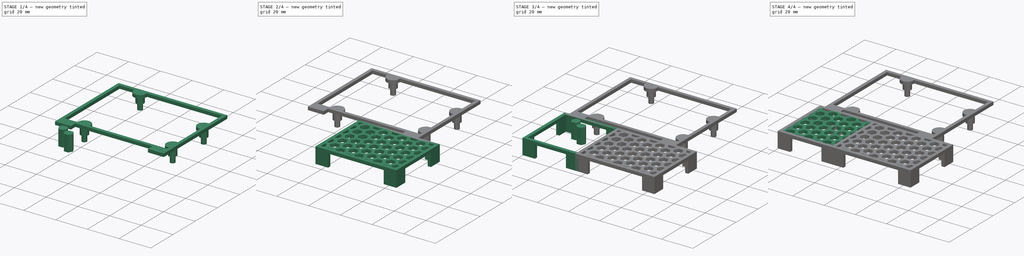
[diagram: build sequence overview — one tinted view per stage of 4, left to right]
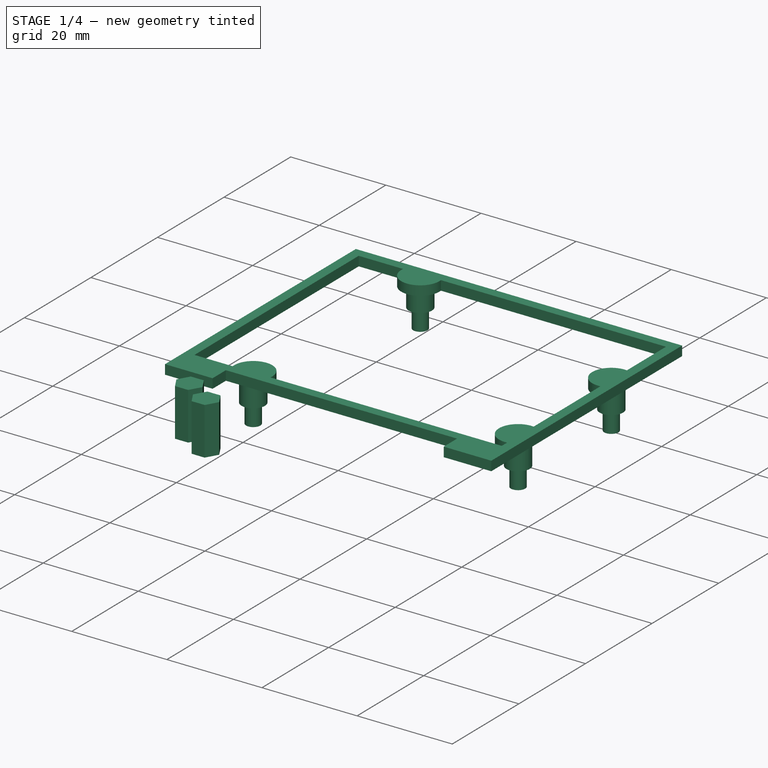
[diagram: stage 1 of 4 — iso view after this stage's code; geometry added in this stage tinted green]
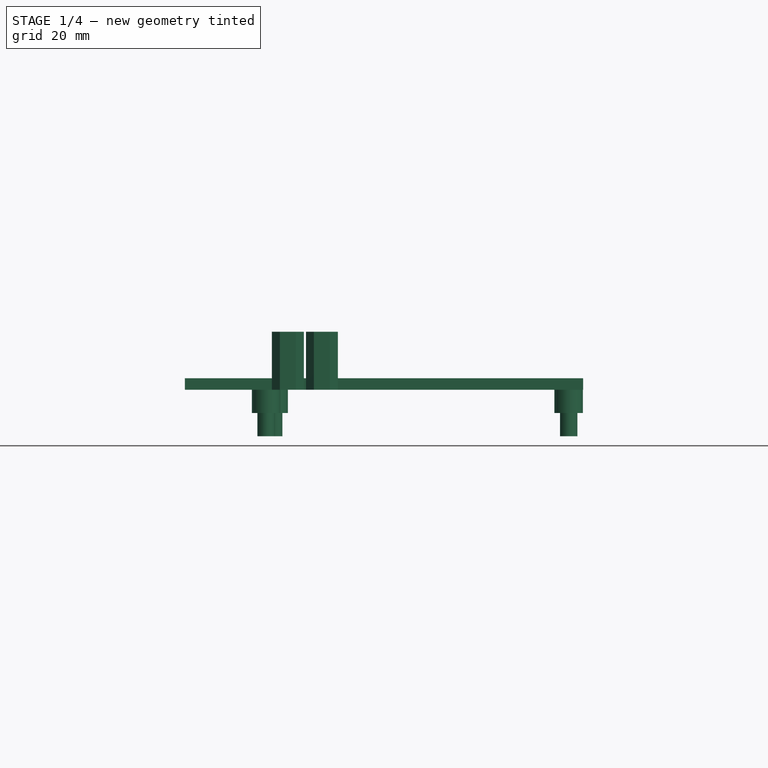
[diagram: stage 1 of 4 — front view after this stage's code; geometry added in this stage tinted green]
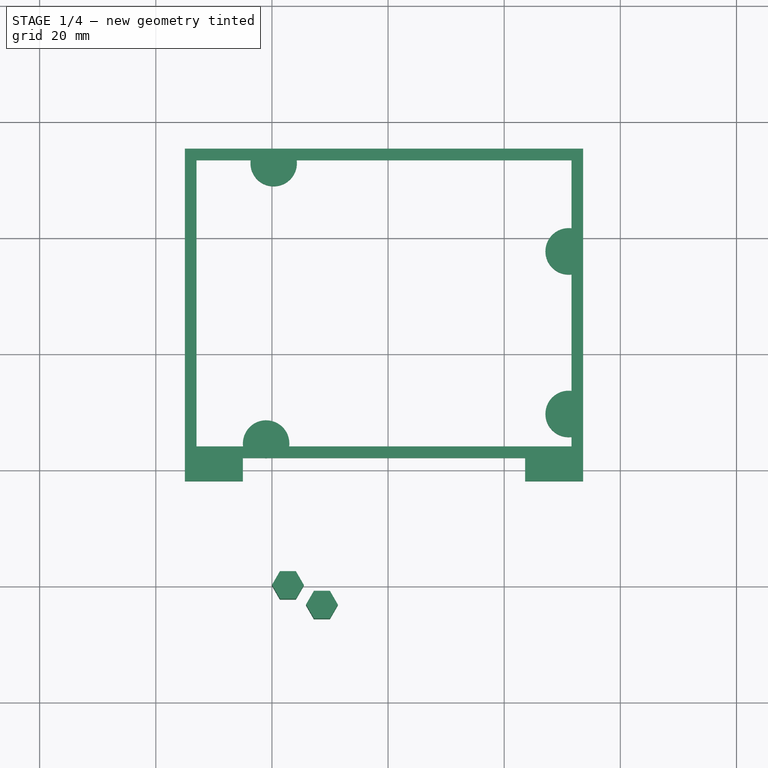
[diagram: stage 1 of 4 — top view after this stage's code; geometry added in this stage tinted green]
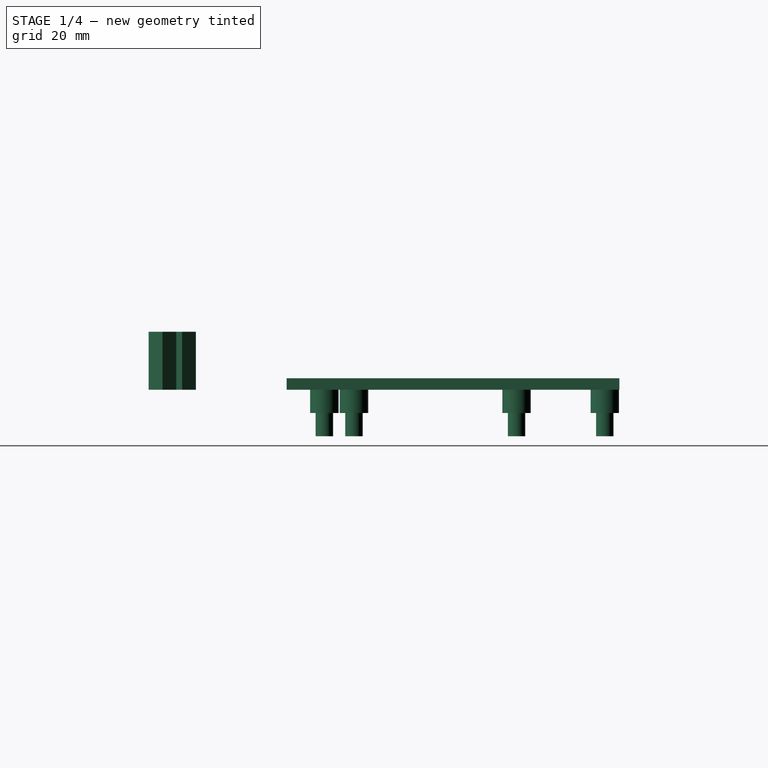
[diagram: stage 1 of 4 — right view after this stage's code; geometry added in this stage tinted green]
FCSTD DOCUMENT  (FreeCAD 0.18R16146 (Git))
Label: totalMpptBoard
License: All rights reserved
LicenseURL: http://en.wikipedia.org/wiki/All_rights_reserved
objects: Sketcher::SketchObject×11, PartDesign::Pad×6, App::FeaturePython×4, PartDesign::Body×3, Spreadsheet::Sheet×2, Part::Extrusion×2, Part::FeaturePython×2, Part::Cut×2, Part::MultiFuse×2
note: 34 computed .brp shape members not serialized (recipe doc carries the construction recipe); baked Part::Feature solids carry a one-line shape summary decoded from their .brp

FEATURE [Sketcher::SketchObject] Sketch008  label="hexagons002"
  MapMode = 5
  Support = -> [XY_Plane002]
  expr: Constraints[41] = Spreadsheet001.hex_gap
  expr: Constraints[37] = Spreadsheet001.hex_diam / 2
  sketch-geometry (15):
    g0: LineSegment StartX=5.5 StartY=4e-16 StartZ=0 EndX=4.125 EndY=2.38157 EndZ=0
    g1: LineSegment StartX=4.125 StartY=2.38157 StartZ=0 EndX=1.375 EndY=2.38157 EndZ=0
    g2: LineSegment StartX=1.375 StartY=2.38157 StartZ=0 EndX=0 EndY=0 EndZ=0
    g3: LineSegment StartX=0 StartY=0 StartZ=0 EndX=1.375 EndY=-2.38157 EndZ=0
    g4: LineSegment StartX=1.375 StartY=-2.38157 StartZ=0 EndX=4.125 EndY=-2.38157 EndZ=0
    g5: LineSegment StartX=4.125 StartY=-2.38157 StartZ=0 EndX=5.5 EndY=4e-16 EndZ=0
    g6: Circle [constr] CenterX=2.75 CenterY=1e-16 CenterZ=0 NormalX=0 NormalY=0 NormalZ=1 AngleXU=0 Radius=2.75
    g7: LineSegment StartX=11.3571 StartY=-3.38157 StartZ=0 EndX=9.98205 EndY=-1 EndZ=0
    g8: LineSegment StartX=9.98205 StartY=-1 StartZ=0 EndX=7.23205 EndY=-1 EndZ=0
    g9: LineSegment StartX=7.23205 StartY=-1 StartZ=0 EndX=5.85705 EndY=-3.38157 EndZ=0
    g10: LineSegment StartX=5.85705 StartY=-3.38157 StartZ=0 EndX=7.23205 EndY=-5.76314 EndZ=0
    g11: LineSegment StartX=7.23205 StartY=-5.76314 StartZ=0 EndX=9.98205 EndY=-5.76314 EndZ=0
    g12: LineSegment StartX=9.98205 StartY=-5.76314 StartZ=0 EndX=11.3571 EndY=-3.38157 EndZ=0
    g13: Circle [constr] CenterX=8.60705 CenterY=-3.38157 CenterZ=0 NormalX=0 NormalY=0 NormalZ=1 AngleXU=0 Radius=2.75
    g14: LineSegment [constr] StartX=4.125 StartY=-2.38157 StartZ=0 EndX=5.85705 EndY=-3.38157 EndZ=0
  constraints (35):
    c: Coincident(g0,g1)
    c: Coincident(g1,g2)
    c: Coincident(g2,g3)
    c: Coincident(g3,g4)
    c: Coincident(g4,g5)
    c: Coincident(g5,g0)
    c: Equal(g0, g1-g5) x5
    c: PointOnObject(g0,g6)
    c: PointOnObject(g1,g6)
    c: PointOnObject(g2,g6)
    c: PointOnObject(g3,g6)
    c: PointOnObject(g4,g6)
    c: PointOnObject(g5,g6)
    c: Coincident(g7,g8)
    c: Coincident(g8,g9)
    c: Coincident(g9,g10)
    c: Coincident(g10,g11)
    c: Coincident(g11,g12)
    c: Coincident(g12,g7)
    c: Equal(g7, g8-g12) x5
    c: PointOnObject(g7,g13)
    c: PointOnObject(g8,g13)
    c: PointOnObject(g9,g13)
    c: PointOnObject(g10,g13)
    c: PointOnObject(g11,g13)
    c: PointOnObject(g12,g13)
    c: Horizontal(g4)
    c: Horizontal(g11)
    c: Equal(g4,g11)
    c: Radius(g6) = 2.75
    c: Coincident(g14,g4)
    c: Coincident(g14,g9)
    c: Perpendicular(g5,g14)
    c: Distance(g14) = 2
    c: Coincident(g2,g-1)
FEATURE [Sketcher::SketchObject] Sketch009  label="measurements001"
  ExternalGeometry = -> [Sketch008]
  MapMode = 5
  Support = -> [XY_Plane002]
  sketch-geometry (2):
    g0: LineSegment StartX=4.125 StartY=2.38157 StartZ=0 EndX=9.98205 EndY=2.38157 EndZ=0
    g1: LineSegment StartX=9.98205 StartY=-1 StartZ=0 EndX=9.98205 EndY=2.38157 EndZ=0
  constraints (5):
    c: Coincident(g0,g-3)
    c: Coincident(g1,g-4)
    c: Coincident(g1,g0)
    c: Horizontal(g0)
    c: Vertical(g1)
FEATURE [App::FeaturePython] Dimension002  label="height001"  # Draft dimension (typed FeaturePython)
  Diameter = false
  Dimline = (16.0134,2.83449,0)
  Direction = (0,0,0)
  Distance = 3.38157
  End = (9.98205,2.38157,0)
  LinkedGeometry = -> [Sketch009]
  Normal = (0,0,1)
  Start = (9.98205,-1,0)
  Support = -> Sketch009
FEATURE [App::FeaturePython] Dimension003  label="width001"  # Draft dimension (typed FeaturePython)
  Diameter = false
  Dimline = (10.7904,6.27637,0)
  Direction = (0,0,0)
  Distance = 5.85705
  End = (9.98205,2.38157,0)
  LinkedGeometry = -> [Sketch009]
  Normal = (0,0,1)
  Start = (4.125,2.38157,0)
  Support = -> Sketch009
FEATURE [Part::Extrusion] Extrude001  label="3d hexagons001"
  Base = -> Sketch008
  Dir = (0,0,1)
  DirMode = 2
  FaceMakerClass = Part::FaceMakerBullseye
  LengthFwd = 10
  LengthRev = 0
  Solid = true
  Symmetric = false
FEATURE [Spreadsheet::Sheet] Spreadsheet001  label="bb"
  cells = A1=bpWidth; B1(bpWidth)=47; A2=bpLength; B2(bpLength)=35; A3=bpThickness; B3(bpThickness)=2; A4=wallLength; B4(wallLength)=8; A5=wallThickness; B5(wallThickness)=2; A6=wallHeight; B6(wallHeight)=8; A8=hex_diam; B8(hex_diam)=5.5; A9=hex_gap; B9(hex_gap)=2
FEATURE [Sketcher::SketchObject] Sketch011  label="uno2D"
  MapMode = 5
  Support = -> [XY_Plane003]
  sketch-geometry (12):
    g0: LineSegment StartX=-15 StartY=22 StartZ=0 EndX=-15 EndY=75.3 EndZ=0
    g1: LineSegment StartX=-15 StartY=75.3 StartZ=0 EndX=49.3574 EndY=75.3 EndZ=0
    g2: LineSegment StartX=49.3574 StartY=75.3 StartZ=0 EndX=51.4787 EndY=73.1787 EndZ=0
    g3: LineSegment StartX=51.4787 StartY=73.1787 StartZ=0 EndX=51.4787 EndY=61.1213 EndZ=0
    g4: LineSegment StartX=51.4787 StartY=61.1213 StartZ=0 EndX=53.6 EndY=59 EndZ=0
    g5: LineSegment StartX=53.6 StartY=59 StartZ=0 EndX=53.6 EndY=24.1213 EndZ=0
    g6: LineSegment StartX=53.6 StartY=24.1213 StartZ=0 EndX=51.4787 EndY=22 EndZ=0
    g7: LineSegment StartX=51.4787 StartY=22 StartZ=0 EndX=-15 EndY=22 EndZ=0
    g8: Circle CenterX=0.3 CenterY=72.8 CenterZ=0 NormalX=0 NormalY=0 NormalZ=1 AngleXU=0 Radius=1.3
    g9: Circle CenterX=-1 CenterY=24.5 CenterZ=0 NormalX=0 NormalY=0 NormalZ=1 AngleXU=0 Radius=1.3
    g10: Circle CenterX=51.1 CenterY=57.6 CenterZ=0 NormalX=0 NormalY=0 NormalZ=1 AngleXU=0 Radius=1.3
    g11: Circle CenterX=51.1 CenterY=29.6 CenterZ=0 NormalX=0 NormalY=0 NormalZ=1 AngleXU=0 Radius=1.3
  constraints (36):
    c: Vertical(g0)
    c: Coincident(g0,g1)
    c: Horizontal(g1)
    c: Coincident(g1,g2)
    c: Coincident(g2,g3)
    c: Vertical(g3)
    c: Coincident(g3,g4)
    c: Coincident(g4,g5)
    c: Vertical(g5)
    c: Coincident(g5,g6)
    c: Coincident(g6,g7)
    c: Coincident(g7,g0)
    c: Horizontal(g7)
    c: Angle(g2) = -0.785398
    c: Angle(g4) = -0.785398
    c: Angle(g6) = -2.35619
    c: DistanceX(g6,g3) = 0
    c: Distance(g2) = 3
    c: Distance(g4) = 3
    c: DistanceX(g0,g5) = 68.6
    c: DistanceY(g0,g0) = 53.3
    c: Radius(g8) = 1.3
    c: Equal(g8,g9)
    c: Equal(g8,g10)
    c: Equal(g8,g11)
    c: DistanceY(g0,g9) = 2.5
    c: DistanceX(g9,g8) = 1.3
    c: DistanceY(g8,g0) = 2.5
    c: DistanceX(g0,g8) = 15.3
    c: DistanceX(g8,g10) = 50.8
    c: DistanceX(g11,g10) = 0
    c: DistanceY(g6,g11) = 7.6
    c: DistanceY(g11,g10) = 28
    c: DistanceY(g6,g4) = 37
    c: DistanceX(g0,g-1) = 15
    c: DistanceY(g-1,g0) = 22
FEATURE [Sketcher::SketchObject] Sketch012
  ExternalGeometry = -> [Sketch011]
  expr: Constraints[62] = sd.wallThickness
  expr: Constraints[15] = sd.wallThickness
  expr: Constraints[59] = sd.wallThickness
  expr: Constraints[17] = sd.wallThickness
  expr: Constraints[18] = sd.wallThickness
  expr: Constraints[16] = sd.wallThickness
  sketch-geometry (22):
    g0: LineSegment StartX=-15 StartY=75.3 StartZ=0 EndX=53.6 EndY=75.3 EndZ=0
    g1: LineSegment StartX=53.6 StartY=75.3 StartZ=0 EndX=53.6 EndY=24.1213 EndZ=0
    g2: LineSegment StartX=43.6 StartY=22 StartZ=0 EndX=-5 EndY=22 EndZ=0
    g3: LineSegment StartX=-15 StartY=22 StartZ=0 EndX=-15 EndY=75.3 EndZ=0
    g4: LineSegment StartX=-13 StartY=73.3 StartZ=0 EndX=-3.66863 EndY=73.3 EndZ=0
    g5: LineSegment StartX=51.6 StartY=73.3 StartZ=0 EndX=51.6 EndY=61.5686 EndZ=0
    g6: LineSegment StartX=51.6 StartY=24 StartZ=0 EndX=2.96863 EndY=24 EndZ=0
    g7: LineSegment StartX=-13 StartY=24 StartZ=0 EndX=-13 EndY=73.3 EndZ=0
    g8: ArcOfCircle CenterX=0.3 CenterY=72.8 CenterZ=0 NormalX=0 NormalY=0 NormalZ=1 AngleXU=0 Radius=4 StartAngle=3.01626 EndAngle=6.40851
    g9: ArcOfCircle CenterX=51.1 CenterY=57.6 CenterZ=0 NormalX=0 NormalY=0 NormalZ=1 AngleXU=0 Radius=4 StartAngle=1.44547 EndAngle=4.83772
    g10: ArcOfCircle CenterX=-1 CenterY=24.5 CenterZ=0 NormalX=0 NormalY=0 NormalZ=1 AngleXU=0 Radius=4 StartAngle=6.15786 EndAngle=9.55011
    g11: ArcOfCircle CenterX=51.1 CenterY=29.6 CenterZ=0 NormalX=0 NormalY=0 NormalZ=1 AngleXU=0 Radius=4 StartAngle=1.44547 EndAngle=4.83772
    g12: LineSegment StartX=4.26863 StartY=73.3 StartZ=0 EndX=51.6 EndY=73.3 EndZ=0
    g13: LineSegment StartX=51.6 StartY=53.6314 StartZ=0 EndX=51.6 EndY=33.5686 EndZ=0
    g14: LineSegment StartX=51.6 StartY=25.6314 StartZ=0 EndX=51.6 EndY=24 EndZ=0
    g15: LineSegment StartX=-4.96863 StartY=24 StartZ=0 EndX=-13 EndY=24 EndZ=0
    g16: LineSegment StartX=-5 StartY=22 StartZ=0 EndX=-5 EndY=18 EndZ=0
    g17: LineSegment StartX=-5 StartY=18 StartZ=0 EndX=-15 EndY=18 EndZ=0
    g18: LineSegment StartX=-15 StartY=18 StartZ=0 EndX=-15 EndY=22 EndZ=0
    g19: LineSegment StartX=53.6 StartY=24.1213 StartZ=0 EndX=53.6 EndY=18 EndZ=0
    g20: LineSegment StartX=53.6 StartY=18 StartZ=0 EndX=43.6 EndY=18 EndZ=0
    g21: LineSegment StartX=43.6 StartY=18 StartZ=0 EndX=43.6 EndY=22 EndZ=0
  constraints (68):
    c: Coincident(g0,g1)
    c: Coincident(g3,g0)
    c: Horizontal(g0)
    c: Horizontal(g2)
    c: Vertical(g1)
    c: Coincident(g0,g-3)
    c: Coincident(g3,g-3)
    c: Coincident(g12,g5)
    c: Coincident(g14,g6)
    c: Coincident(g15,g7)
    c: Coincident(g7,g4)
    c: Horizontal(g4)
    c: Horizontal(g6)
    c: Vertical(g5)
    c: Vertical(g7)
    c: DistanceX(g0,g4) = 2
    c: DistanceX(g14,g-4) = 2
    c: DistanceY(g-3,g15) = 2
    c: DistanceY(g4,g0) = 2
    c: DistanceY(g8,g8) = 0
    c: Radius(g8) = 4
    c: Coincident(g9,g-6)
    c: DistanceX(g9,g9) = 0
    c: Radius(g9) = 4
    c: Coincident(g10,g-7)
    c: Coincident(g11,g-8)
    c: Radius(g10) = 4
    c: Radius(g11) = 4
    c: DistanceY(g10,g10) = 0
    c: Coincident(g8,g-5)
    c: DistanceY(g4,g8) = 0
    c: DistanceX(g12,g9) = 0
    c: DistanceX(g14,g11) = 0
    c: DistanceX(g11,g11) = 0
    c: DistanceY(g10,g15) = 0
    c: PointOnObject(g4,g8)
    c: PointOnObject(g12,g8)
    c: Tangent(g4,g12)
    c: PointOnObject(g5,g9)
    c: PointOnObject(g13,g9)
    c: Tangent(g5,g13)
    c: PointOnObject(g13,g11)
    c: PointOnObject(g14,g11)
    c: Tangent(g13,g14)
    c: PointOnObject(g6,g10)
    c: PointOnObject(g15,g10)
    c: Tangent(g6,g15)
    c: Coincident(g16,g17)
    c: Coincident(g17,g18)
    c: Horizontal(g17)
    c: Vertical(g16)
    c: Vertical(g18)
    c: Coincident(g2,g16)
    c: DistanceX(g18,g2) = 10
    c: Coincident(g19,g20)
    c: Coincident(g20,g21)
    c: Horizontal(g20)
    c: Vertical(g19)
    c: Vertical(g21)
    c: DistanceY(g21,g6) = 2
    c: DistanceX(g2,g1) = 10
    c: Coincident(g18,g3)
    c: DistanceY(g2,g10) = 2
    c: DistanceX(g2,g21) = 0
    c: Coincident(g1,g19)
    c: DistanceY(g20,g16) = 0
    c: Coincident(g1,g-4)
    c: DistanceY(g17,g3) = 4
FEATURE [PartDesign::Pad] Pad003  label="unoBorder"
  Length = 2
  Length2 = 100
  Profile = -> Sketch012
  Type = 0
  expr: Length = sd.bpThickness
FEATURE [Sketcher::SketchObject] Sketch014
  ExternalGeometry = -> [Sketch011]
  MapMode = 5
  Support = -> [XY_Plane003]
  sketch-geometry (4):
    g0: Circle CenterX=0.3 CenterY=72.8 CenterZ=0 NormalX=0 NormalY=0 NormalZ=1 AngleXU=0 Radius=1.5
    g1: Circle CenterX=51.1 CenterY=57.6 CenterZ=0 NormalX=0 NormalY=0 NormalZ=1 AngleXU=0 Radius=1.5
    g2: Circle CenterX=51.1 CenterY=29.6 CenterZ=0 NormalX=0 NormalY=0 NormalZ=1 AngleXU=0 Radius=1.5
    g3: Circle CenterX=-1 CenterY=24.5 CenterZ=0 NormalX=0 NormalY=0 NormalZ=1 AngleXU=0 Radius=1.5
  constraints (8):
    c: Coincident(g0,g-3)
    c: Coincident(g1,g-4)
    c: Coincident(g2,g-5)
    c: Coincident(g3,g-6)
    c: Radius(g0) = 1.5
    c: Equal(g0,g1)
    c: Equal(g0,g2)
    c: Equal(g0,g3)
FEATURE [PartDesign::Pad] Pad005  label="thinPoles"
  BaseFeature = -> Pad003
  Length = 8
  Length2 = 100
  Profile = -> Sketch014
  Reversed = true
  Type = 0
FEATURE [Sketcher::SketchObject] Sketch015
  ExternalGeometry = -> [Sketch011]
  MapMode = 5
  Support = -> [XY_Plane003]
  sketch-geometry (4):
    g0: Circle CenterX=0.3 CenterY=72.8 CenterZ=0 NormalX=0 NormalY=0 NormalZ=1 AngleXU=0 Radius=2.45
    g1: Circle CenterX=51.1 CenterY=57.6 CenterZ=0 NormalX=0 NormalY=0 NormalZ=1 AngleXU=0 Radius=2.45
    g2: Circle CenterX=51.1 CenterY=29.6 CenterZ=0 NormalX=0 NormalY=0 NormalZ=1 AngleXU=0 Radius=2.45
    g3: Circle CenterX=-1 CenterY=24.5 CenterZ=0 NormalX=0 NormalY=0 NormalZ=1 AngleXU=0 Radius=2.45
  constraints (8):
    c: Coincident(g0,g-3)
    c: Coincident(g3,g-4)
    c: Coincident(g2,g-5)
    c: Coincident(g1,g-6)
    c: Radius(g0) = 2.45
    c: Equal(g0,g1)
    c: Equal(g0,g2)
    c: Equal(g0,g3)
FEATURE [PartDesign::Pad] Pad006  label="thickPoles"
  BaseFeature = -> Pad005
  Length = 4
  Length2 = 100
  Profile = -> Sketch015
  Reversed = true
  Type = 0
FEATURE [PartDesign::Body] Body002  label="uno"
  Group = -> [Sketch011,Pad003,Sketch014,Pad005,Sketch015,Pad006]
  Origin = -> Origin002
  Tip = -> Pad006
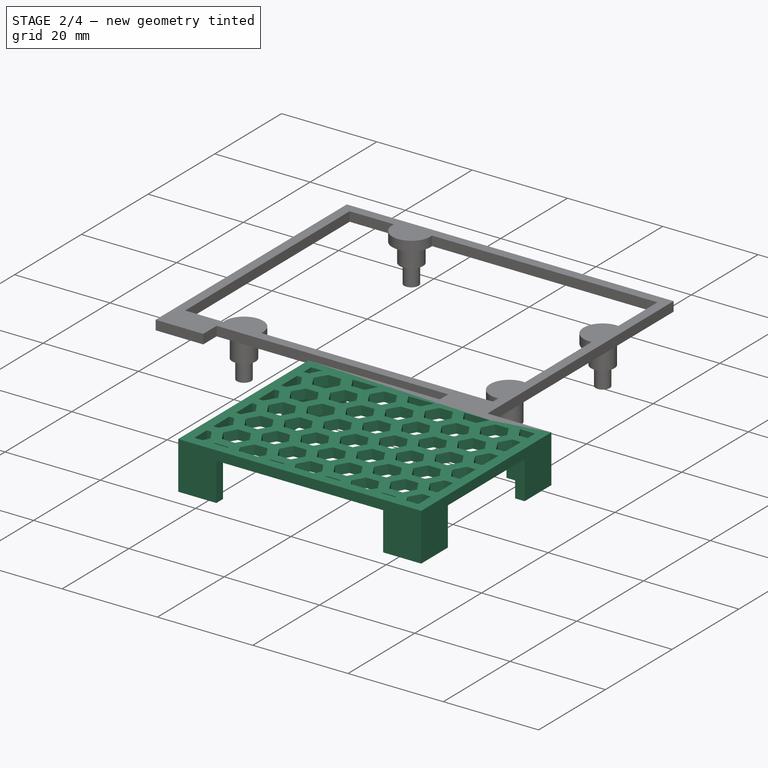
[diagram: stage 2 of 4 — iso view after this stage's code; geometry added in this stage tinted green]
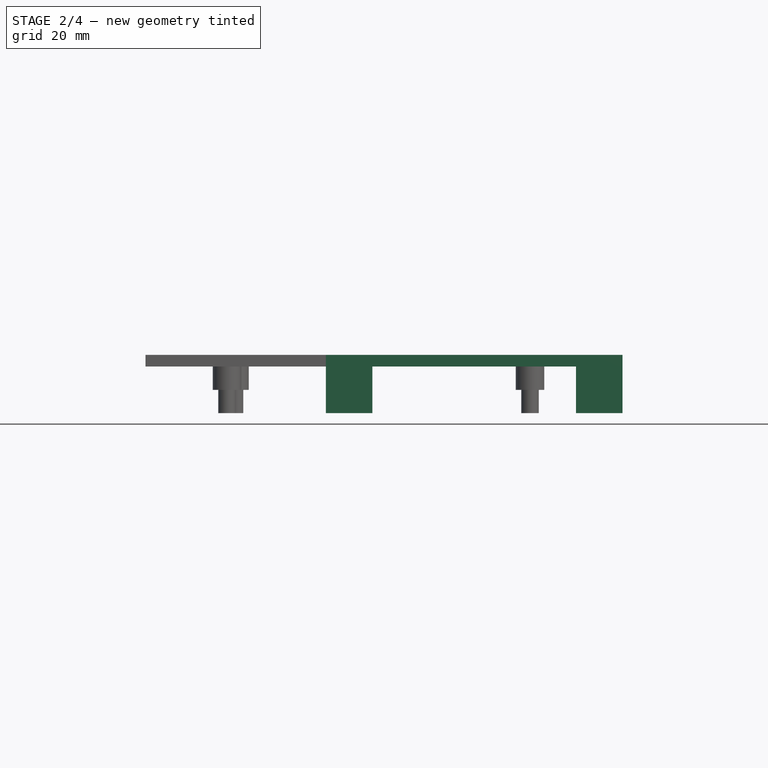
[diagram: stage 2 of 4 — front view after this stage's code; geometry added in this stage tinted green]
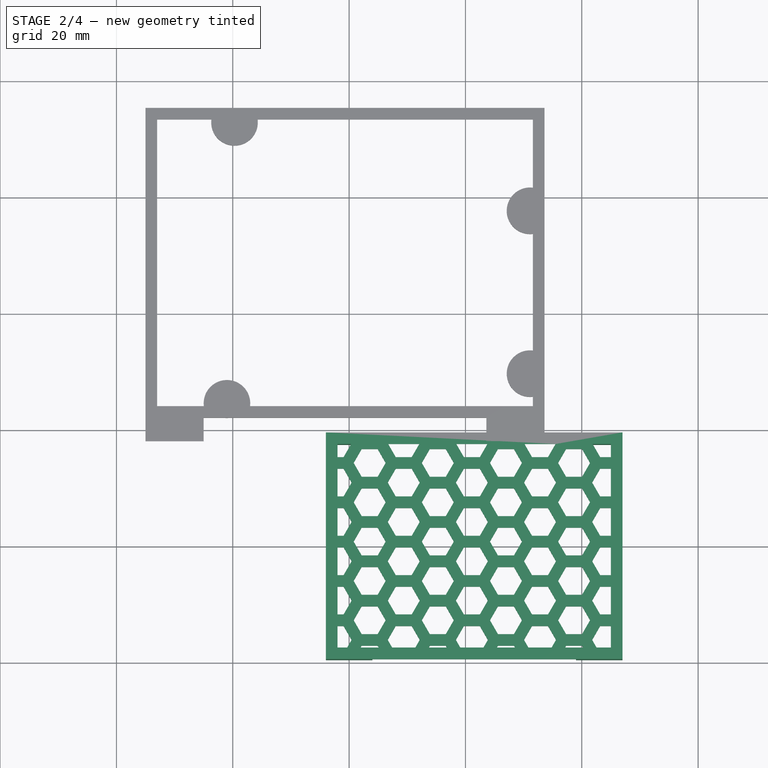
[diagram: stage 2 of 4 — top view after this stage's code; geometry added in this stage tinted green]
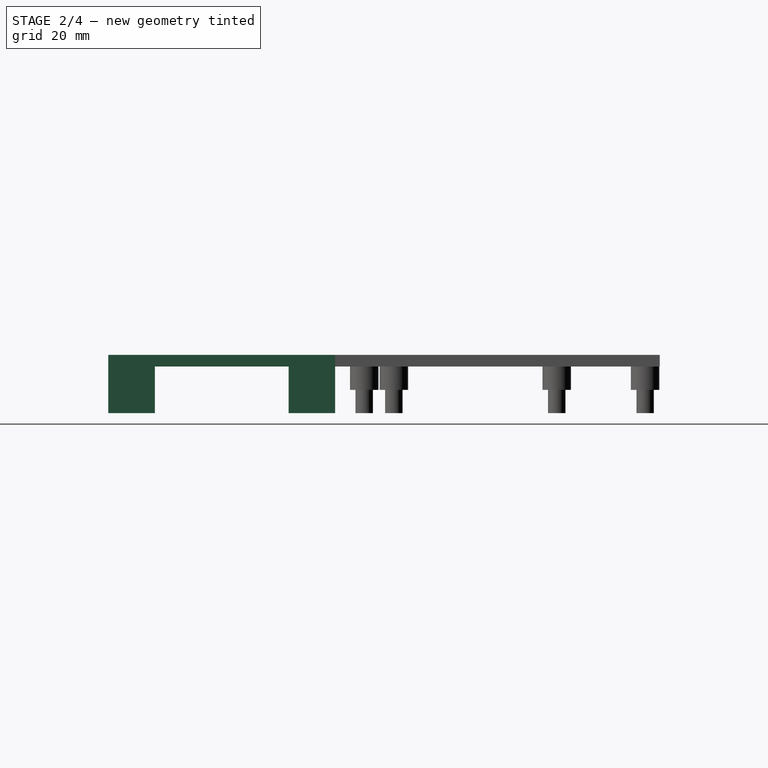
[diagram: stage 2 of 4 — right view after this stage's code; geometry added in this stage tinted green]
FEATURE [Part::FeaturePython] Array001  # Draft array (typed FeaturePython)
  Angle = 360
  ArrayType = 0
  Axis = (0,0,1)
  Base = -> Extrude001
  Center = (0,0,0)
  Fuse = false
  IntervalAxis = (0,0,0)
  IntervalX = (11.7141,0,0)
  IntervalY = (0,6.76314,0)
  IntervalZ = (0,0,1)
  NumberPolar = 1
  NumberX = 10
  NumberY = 20
  NumberZ = 1
  Placement = pos=(-50,-50,-1) rot=(0,0,1;0rad)
  expr: IntervalY.y = height.Distance * 2
  expr: IntervalX.x = width.Distance * 2
FEATURE [Part::Cut] Cut001
  Tool = -> Array001
FEATURE [Part::MultiFuse] Fusion001  label="breadboard"
  Placement = pos=(41.5,0,0) rot=(0,0,1;0rad)
  Shapes = -> [Cut001]
  expr: Placement.Base.x = (bb.bpWidth + sd.bpWidth) / 2 + bb.wallThickness
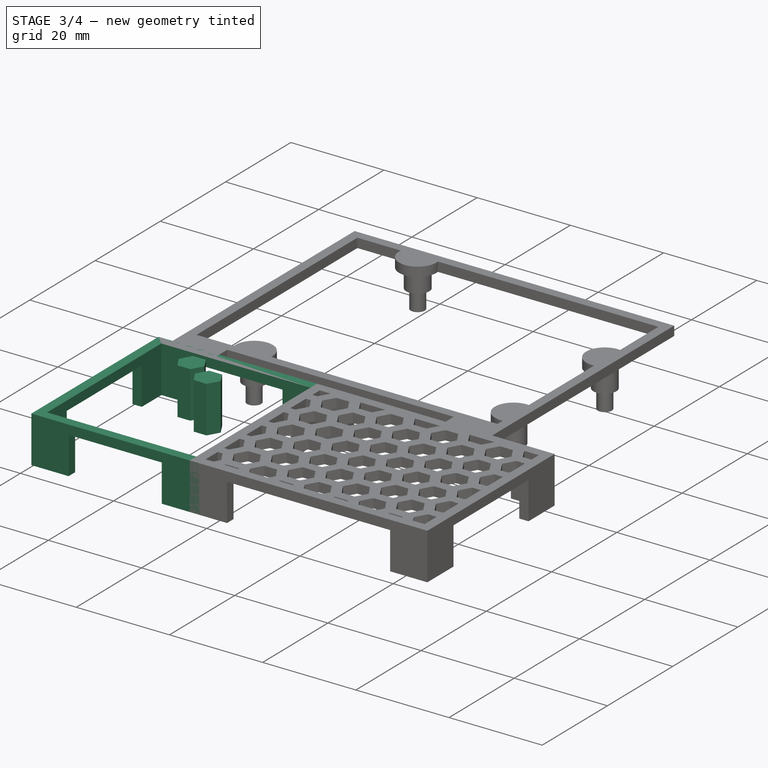
[diagram: stage 3 of 4 — iso view after this stage's code; geometry added in this stage tinted green]
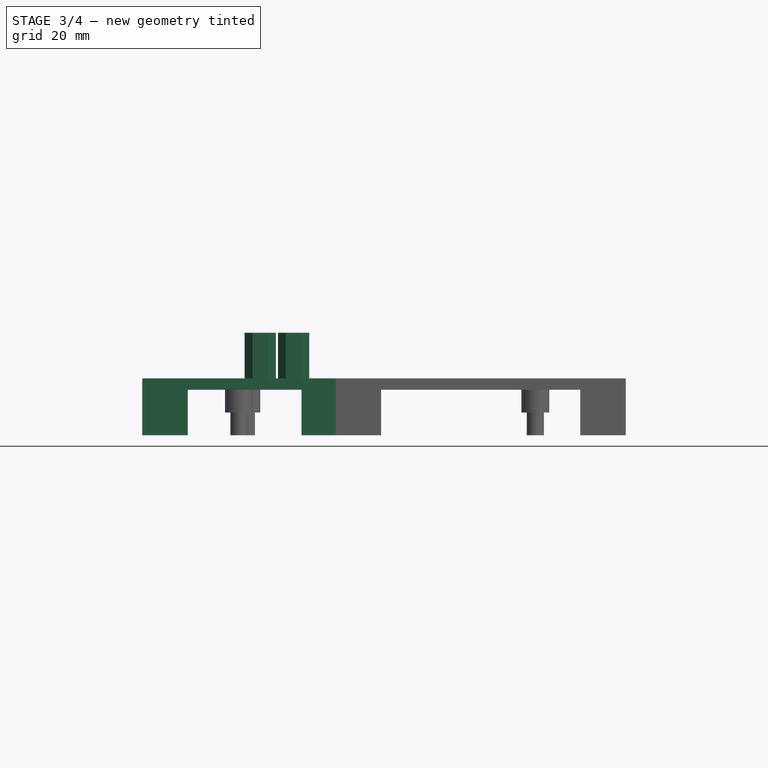
[diagram: stage 3 of 4 — front view after this stage's code; geometry added in this stage tinted green]
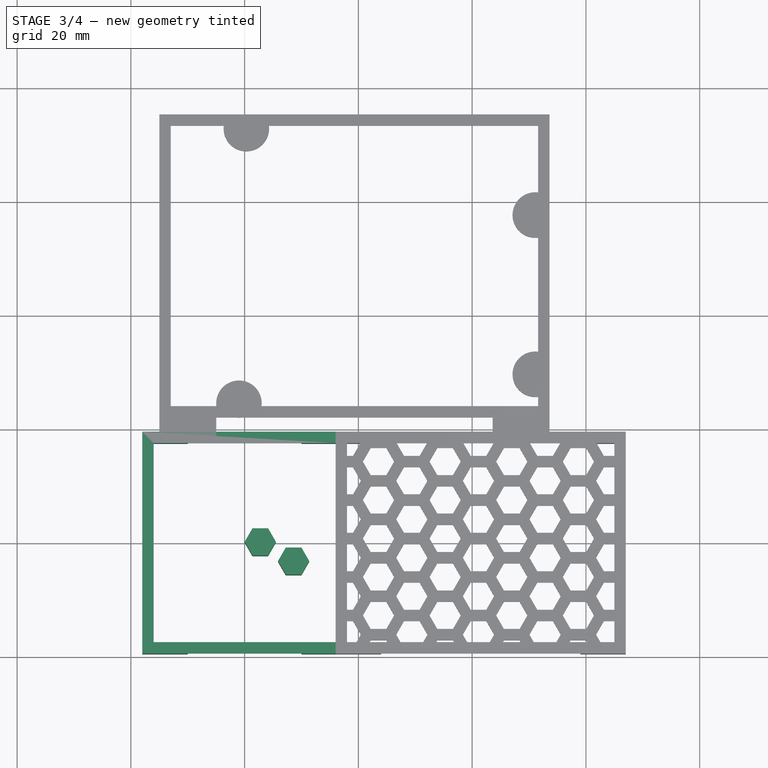
[diagram: stage 3 of 4 — top view after this stage's code; geometry added in this stage tinted green]
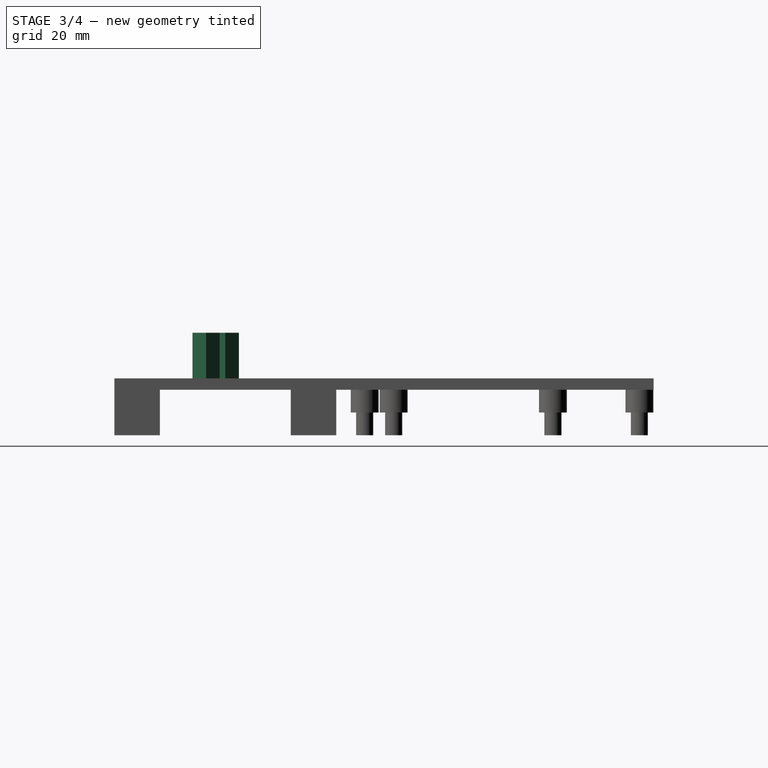
[diagram: stage 3 of 4 — right view after this stage's code; geometry added in this stage tinted green]
FEATURE [Spreadsheet::Sheet] Spreadsheet  label="sd"
  cells = A1=bpWidth; B1(bpWidth)=32; A2=bpLength; B2(bpLength)=35; A3=bpThickness; B3(bpThickness)=2; A4=wallLength; B4(wallLength)=8; A5=wallThickness; B5(wallThickness)=2; A6=wallHeight; B6(wallHeight)=8; A8=hex_diam; B8(hex_diam)=5.5; A9=hex_gap; B9(hex_gap)=2
FEATURE [Sketcher::SketchObject] Sketch002  label="hexagons001"
  MapMode = 5
  Support = -> [XY_Plane001]
  expr: Constraints[41] = Spreadsheet.hex_gap
  expr: Constraints[37] = Spreadsheet.hex_diam / 2
  sketch-geometry (15):
    g0: LineSegment StartX=5.5 StartY=0 StartZ=0 EndX=4.125 EndY=2.38157 EndZ=0
    g1: LineSegment StartX=4.125 StartY=2.38157 StartZ=0 EndX=1.375 EndY=2.38157 EndZ=0
    g2: LineSegment StartX=1.375 StartY=2.38157 StartZ=0 EndX=0 EndY=0 EndZ=0
    g3: LineSegment StartX=0 StartY=0 StartZ=0 EndX=1.375 EndY=-2.38157 EndZ=0
    g4: LineSegment StartX=1.375 StartY=-2.38157 StartZ=0 EndX=4.125 EndY=-2.38157 EndZ=0
    g5: LineSegment StartX=4.125 StartY=-2.38157 StartZ=0 EndX=5.5 EndY=0 EndZ=0
    g6: Circle [constr] CenterX=2.75 CenterY=0 CenterZ=0 NormalX=0 NormalY=0 NormalZ=1 AngleXU=0 Radius=2.75
    g7: LineSegment StartX=11.3571 StartY=-3.38157 StartZ=0 EndX=9.98205 EndY=-1 EndZ=0
    g8: LineSegment StartX=9.98205 StartY=-1 StartZ=0 EndX=7.23205 EndY=-1 EndZ=0
    g9: LineSegment StartX=7.23205 StartY=-1 StartZ=0 EndX=5.85705 EndY=-3.38157 EndZ=0
    g10: LineSegment StartX=5.85705 StartY=-3.38157 StartZ=0 EndX=7.23205 EndY=-5.76314 EndZ=0
    g11: LineSegment StartX=7.23205 StartY=-5.76314 StartZ=0 EndX=9.98205 EndY=-5.76314 EndZ=0
    g12: LineSegment StartX=9.98205 StartY=-5.76314 StartZ=0 EndX=11.3571 EndY=-3.38157 EndZ=0
    g13: Circle [constr] CenterX=8.60705 CenterY=-3.38157 CenterZ=0 NormalX=0 NormalY=0 NormalZ=1 AngleXU=0 Radius=2.75
    g14: LineSegment [constr] StartX=4.125 StartY=-2.38157 StartZ=0 EndX=5.85705 EndY=-3.38157 EndZ=0
  constraints (35):
    c: Coincident(g0,g1)
    c: Coincident(g1,g2)
    c: Coincident(g2,g3)
    c: Coincident(g3,g4)
    c: Coincident(g4,g5)
    c: Coincident(g5,g0)
    c: Equal(g0, g1-g5) x5
    c: PointOnObject(g0,g6)
    c: PointOnObject(g1,g6)
    c: PointOnObject(g2,g6)
    c: PointOnObject(g3,g6)
    c: PointOnObject(g4,g6)
    c: PointOnObject(g5,g6)
    c: Coincident(g7,g8)
    c: Coincident(g8,g9)
    c: Coincident(g9,g10)
    c: Coincident(g10,g11)
    c: Coincident(g11,g12)
    c: Coincident(g12,g7)
    c: Equal(g7, g8-g12) x5
    c: PointOnObject(g7,g13)
    c: PointOnObject(g8,g13)
    c: PointOnObject(g9,g13)
    c: PointOnObject(g10,g13)
    c: PointOnObject(g11,g13)
    c: PointOnObject(g12,g13)
    c: Horizontal(g4)
    c: Horizontal(g11)
    c: Equal(g4,g11)
    c: Radius(g6) = 2.75
    c: Coincident(g14,g4)
    c: Coincident(g14,g9)
    c: Perpendicular(g5,g14)
    c: Distance(g14) = 2
    c: Coincident(g2,g-1)
FEATURE [Sketcher::SketchObject] Sketch003  label="measurements"
  ExternalGeometry = -> [Sketch002]
  MapMode = 5
  Support = -> [XY_Plane001]
  sketch-geometry (2):
    g0: LineSegment StartX=4.125 StartY=2.38157 StartZ=0 EndX=9.98205 EndY=2.38157 EndZ=0
    g1: LineSegment StartX=9.98205 StartY=-1 StartZ=0 EndX=9.98205 EndY=2.38157 EndZ=0
  constraints (5):
    c: Coincident(g0,g-3)
    c: Coincident(g1,g-4)
    c: Coincident(g1,g0)
    c: Horizontal(g0)
    c: Vertical(g1)
FEATURE [App::FeaturePython] Dimension  label="width"  # Draft dimension (typed FeaturePython)
  Diameter = false
  Dimline = (10.7904,6.27637,0)
  Direction = (0,0,0)
  Distance = 5.85705
  End = (9.98205,2.38157,0)
  LinkedGeometry = -> [Sketch003]
  Normal = (0,0,1)
  Start = (4.125,2.38157,0)
  Support = -> Sketch003
FEATURE [App::FeaturePython] Dimension001  label="height"  # Draft dimension (typed FeaturePython)
  Diameter = false
  Dimline = (16.0134,2.83449,0)
  Direction = (0,0,0)
  Distance = 3.38157
  End = (9.98205,2.38157,0)
  LinkedGeometry = -> [Sketch003]
  Normal = (0,0,1)
  Start = (9.98205,-1,0)
  Support = -> Sketch003
FEATURE [Part::Extrusion] Extrude  label="3d hexagons"
  Base = -> Sketch002
  Dir = (0,0,1)
  DirMode = 2
  FaceMakerClass = Part::FaceMakerBullseye
  LengthFwd = 10
  LengthRev = 0
  Solid = true
  Symmetric = false
FEATURE [PartDesign::Pad] Pad001  label="bp-outline001"
  Length = 2
  Length2 = 100
  Profile = -> Sketch004
  Type = 0
  expr: Length = Spreadsheet.bpThickness
FEATURE [PartDesign::Pad] Pad002  label="corners"
  BaseFeature = -> Pad001
  Length = 8
  Length2 = 100
  Profile = -> Sketch005
  Type = 0
  expr: Length = Spreadsheet.wallHeight
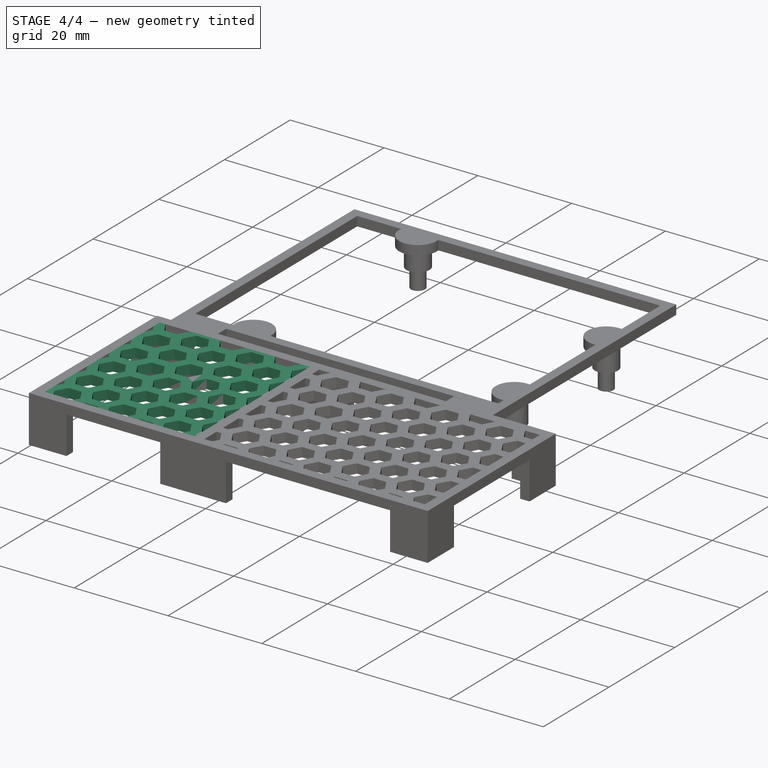
[diagram: stage 4 of 4 — iso view after this stage's code; geometry added in this stage tinted green]
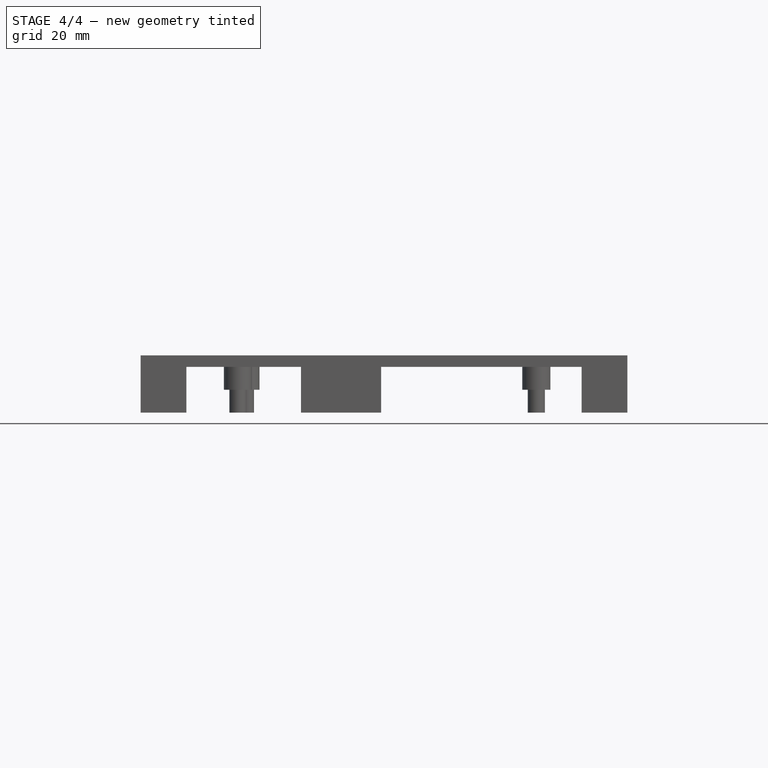
[diagram: stage 4 of 4 — front view after this stage's code; geometry added in this stage tinted green]
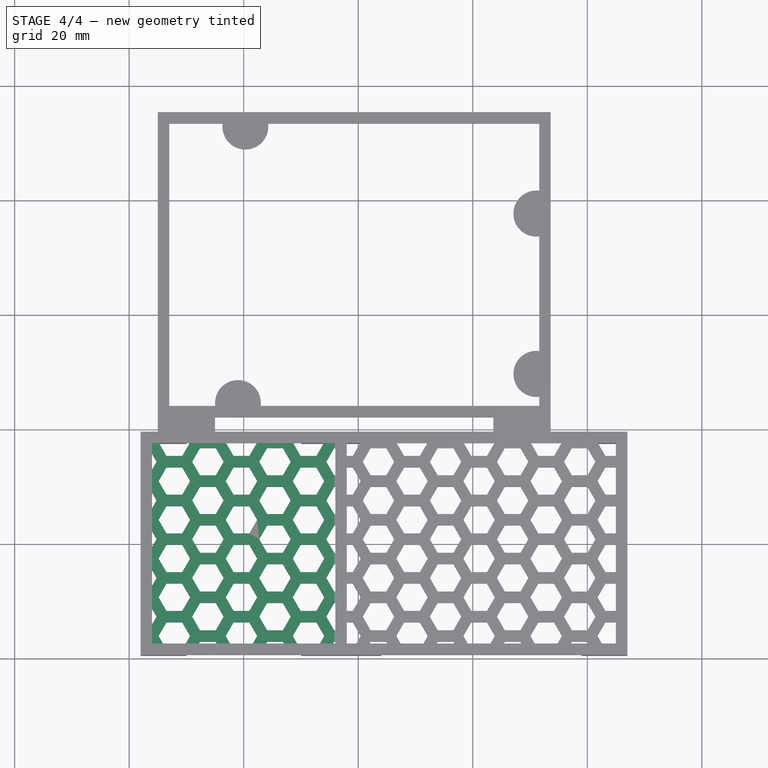
[diagram: stage 4 of 4 — top view after this stage's code; geometry added in this stage tinted green]
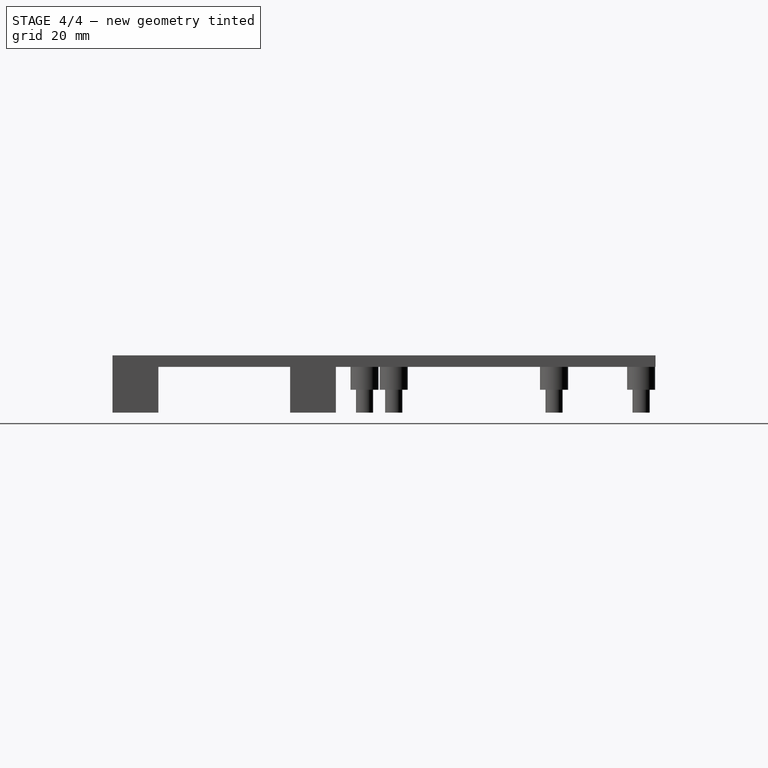
[diagram: stage 4 of 4 — right view after this stage's code; geometry added in this stage tinted green]
FEATURE [Sketcher::SketchObject] Sketch004  label="bp-outline"
  MapMode = 2
  expr: Constraints[21] = Spreadsheet.bpLength
  expr: Constraints[20] = Spreadsheet.bpWidth
  expr: Constraints[10] = Spreadsheet.bpLength + 2 * Spreadsheet.wallThickness
  expr: Constraints[9] = Spreadsheet.bpWidth + 2 * Spreadsheet.wallThickness
  sketch-geometry (8):
    g0: LineSegment StartX=-18 StartY=19.5 StartZ=0 EndX=18 EndY=19.5 EndZ=0
    g1: LineSegment StartX=18 StartY=19.5 StartZ=0 EndX=18 EndY=-19.5 EndZ=0
    g2: LineSegment StartX=18 StartY=-19.5 StartZ=0 EndX=-18 EndY=-19.5 EndZ=0
    g3: LineSegment StartX=-18 StartY=-19.5 StartZ=0 EndX=-18 EndY=19.5 EndZ=0
    g4: LineSegment StartX=-16 StartY=17.5 StartZ=0 EndX=16 EndY=17.5 EndZ=0
    g5: LineSegment StartX=16 StartY=17.5 StartZ=0 EndX=16 EndY=-17.5 EndZ=0
    g6: LineSegment StartX=16 StartY=-17.5 StartZ=0 EndX=-16 EndY=-17.5 EndZ=0
    g7: LineSegment StartX=-16 StartY=-17.5 StartZ=0 EndX=-16 EndY=17.5 EndZ=0
  constraints (22):
    c: Coincident(g0,g1)
    c: Coincident(g1,g2)
    c: Coincident(g2,g3)
    c: Coincident(g3,g0)
    c: Horizontal(g0)
    c: Horizontal(g2)
    c: Vertical(g1)
    c: Vertical(g3)
    c: Symmetric(g0,g1,g-1)
    c: DistanceX(g0,g0) = 36
    c: DistanceY(g3,g3) = 39
    c: Coincident(g4,g5)
    c: Coincident(g5,g6)
    c: Coincident(g6,g7)
    c: Coincident(g7,g4)
    c: Horizontal(g4)
    c: Horizontal(g6)
    c: Vertical(g5)
    c: Vertical(g7)
    c: Symmetric(g4,g5,g-1)
    c: DistanceX(g4,g4) = 32
    c: DistanceY(g7,g7) = 35
FEATURE [Sketcher::SketchObject] Sketch005  label="corners001"
  MapMode = 5
  Placement = pos=(0,0,0) rot=(1,0,0;3.14159rad)
  expr: Constraints[16] = Spreadsheet.bpWidth / 2 + Spreadsheet.wallThickness
  expr: Constraints[17] = Spreadsheet.bpLength / 2 + Spreadsheet.wallThickness
  expr: Constraints[59] = Spreadsheet.wallThickness
  expr: Constraints[58] = Spreadsheet.wallThickness
  expr: Constraints[62] = Spreadsheet.wallLength
  expr: Constraints[57] = Spreadsheet.wallLength - Spreadsheet.wallThickness
  expr: Constraints[54] = Spreadsheet.wallLength
  expr: Constraints[60] = Spreadsheet.wallLength
  sketch-geometry (24):
    g0: LineSegment StartX=-18 StartY=11.5 StartZ=0 EndX=-18 EndY=19.5 EndZ=0
    g1: LineSegment StartX=-18 StartY=19.5 StartZ=0 EndX=-10 EndY=19.5 EndZ=0
    g2: LineSegment StartX=-10 StartY=19.5 StartZ=0 EndX=-10 EndY=17.5 EndZ=0
    g3: LineSegment StartX=-10 StartY=17.5 StartZ=0 EndX=-16 EndY=17.5 EndZ=0
    g4: LineSegment StartX=-16 StartY=17.5 StartZ=0 EndX=-16 EndY=11.5 EndZ=0
    g5: LineSegment StartX=-16 StartY=11.5 StartZ=0 EndX=-18 EndY=11.5 EndZ=0
    g6: LineSegment StartX=18 StartY=11.5 StartZ=0 EndX=18 EndY=19.5 EndZ=0
    g7: LineSegment StartX=18 StartY=19.5 StartZ=0 EndX=10 EndY=19.5 EndZ=0
    g8: LineSegment StartX=10 StartY=19.5 StartZ=0 EndX=10 EndY=17.5 EndZ=0
    g9: LineSegment StartX=10 StartY=17.5 StartZ=0 EndX=16 EndY=17.5 EndZ=0
    g10: LineSegment StartX=16 StartY=17.5 StartZ=0 EndX=16 EndY=11.5 EndZ=0
    g11: LineSegment StartX=16 StartY=11.5 StartZ=0 EndX=18 EndY=11.5 EndZ=0
    g12: LineSegment StartX=-18 StartY=-11.5 StartZ=0 EndX=-18 EndY=-19.5 EndZ=0
    g13: LineSegment StartX=-18 StartY=-19.5 StartZ=0 EndX=-10 EndY=-19.5 EndZ=0
    g14: LineSegment StartX=-10 StartY=-19.5 StartZ=0 EndX=-10 EndY=-17.5 EndZ=0
    g15: LineSegment StartX=-10 StartY=-17.5 StartZ=0 EndX=-16 EndY=-17.5 EndZ=0
    g16: LineSegment StartX=-16 StartY=-17.5 StartZ=0 EndX=-16 EndY=-11.5 EndZ=0
    g17: LineSegment StartX=-16 StartY=-11.5 StartZ=0 EndX=-18 EndY=-11.5 EndZ=0
    g18: LineSegment StartX=18 StartY=-11.5 StartZ=0 EndX=18 EndY=-19.5 EndZ=0
    g19: LineSegment StartX=18 StartY=-19.5 StartZ=0 EndX=10 EndY=-19.5 EndZ=0
    g20: LineSegment StartX=10 StartY=-19.5 StartZ=0 EndX=10 EndY=-17.5 EndZ=0
    g21: LineSegment StartX=10 StartY=-17.5 StartZ=0 EndX=16 EndY=-17.5 EndZ=0
    g22: LineSegment StartX=16 StartY=-17.5 StartZ=0 EndX=16 EndY=-11.5 EndZ=0
    g23: LineSegment StartX=16 StartY=-11.5 StartZ=0 EndX=18 EndY=-11.5 EndZ=0
  constraints (68):
    c: Coincident(g0,g1)
    c: Coincident(g1,g2)
    c: Coincident(g2,g3)
    c: Coincident(g3,g4)
    c: Coincident(g4,g5)
    c: Coincident(g5,g0)
    c: Horizontal(g3)
    c: Horizontal(g5)
    c: Horizontal(g1)
    c: Vertical(g2)
    c: Vertical(g0)
    c: Vertical(g4)
    c: DistanceX(g1,g1) = 8
    c: DistanceX(g5,g5) = 2
    c: DistanceY(g2,g2) = 2
    c: DistanceY(g0,g0) = 8
    c: DistanceX(g0,g-1) = 18
    c: DistanceY(g-1,g0) = 19.5
    c: Coincident(g6,g7)
    c: Coincident(g7,g8)
    c: Coincident(g8,g9)
    c: Coincident(g9,g10)
    c: Coincident(g10,g11)
    c: Coincident(g11,g6)
    c: Horizontal(g9)
    c: Horizontal(g11)
    c: Horizontal(g7)
    c: Vertical(g8)
    c: Vertical(g6)
    c: Vertical(g10)
    c: Coincident(g12,g13)
    c: Coincident(g13,g14)
    c: Coincident(g14,g15)
    c: Coincident(g15,g16)
    c: Coincident(g16,g17)
    c: Coincident(g17,g12)
    c: Horizontal(g15)
    c: Horizontal(g17)
    c: Horizontal(g13)
    c: Vertical(g14)
    c: Vertical(g12)
    c: Vertical(g16)
    c: Coincident(g18,g19)
    c: Coincident(g19,g20)
    c: Coincident(g20,g21)
    c: Coincident(g21,g22)
    c: Coincident(g22,g23)
    c: Coincident(g23,g18)
    c: Horizontal(g21)
    c: Horizontal(g23)
    c: Horizontal(g19)
    c: Vertical(g20)
    c: Vertical(g18)
    c: Vertical(g22)
    c: DistanceX(g7,g7) = 8
    c: DistanceY(g6,g6) = 8
    c: DistanceX(g9,g9) = 6  'wall-short'
    c: DistanceY(g10,g10) = 6
    c: DistanceY(g14,g14) = 2
    c: DistanceX(g17,g17) = 2
    c: Distance(g12) = 8
    c: Distance(g13) = 8
    c: Distance(g19) = 8
    c: Distance(g18) = 8
    c: Symmetric(g0,g18,g-1)
    c: Symmetric(g12,g6,g-1)
    c: Symmetric(g3,g21,g-1)
    c: Symmetric(g0,g6,g-2)
FEATURE [Sketcher::SketchObject] Sketch  label="baseplate"
  expr: Constraints[9] = Spreadsheet.bpLength
  expr: Constraints[8] = Spreadsheet.bpWidth
  sketch-geometry (4):
    g0: LineSegment StartX=-16 StartY=17.5 StartZ=0 EndX=16 EndY=17.5 EndZ=0
    g1: LineSegment StartX=16 StartY=17.5 StartZ=0 EndX=16 EndY=-17.5 EndZ=0
    g2: LineSegment StartX=16 StartY=-17.5 StartZ=0 EndX=-16 EndY=-17.5 EndZ=0
    g3: LineSegment StartX=-16 StartY=-17.5 StartZ=0 EndX=-16 EndY=17.5 EndZ=0
  constraints (11):
    c: Coincident(g0,g1)
    c: Coincident(g1,g2)
    c: Coincident(g2,g3)
    c: Coincident(g3,g0)
    c: Horizontal(g0)
    c: Horizontal(g2)
    c: Vertical(g1)
    c: Vertical(g3)
    c: DistanceX(g0,g0) = 32
    c: DistanceY(g3,g3) = 35
    c: Symmetric(g0,g1,g-1)
FEATURE [PartDesign::Pad] Pad  label="solid-baseplate"
  Length = 2
  Length2 = 100
  Profile = -> Sketch
  Type = 0
  expr: Length = Spreadsheet.bpThickness
FEATURE [PartDesign::Body] Body001  label="hexagons"
  Group = -> [Sketch002,Sketch003,Sketch,Pad]
  Origin = -> Origin001
  Tip = -> Pad
FEATURE [Part::FeaturePython] Array  # Draft array (typed FeaturePython)
  Angle = 360
  ArrayType = 0
  Axis = (0,0,1)
  Base = -> Extrude
  Center = (0,0,0)
  Fuse = false
  IntervalAxis = (0,0,0)
  IntervalX = (11.7141,0,0)
  IntervalY = (0,6.76314,0)
  IntervalZ = (0,0,1)
  NumberPolar = 1
  NumberX = 10
  NumberY = 20
  NumberZ = 1
  Placement = pos=(-50,-50,-1) rot=(0,0,1;0rad)
  expr: IntervalY.y = height.Distance * 2
  expr: IntervalX.x = width.Distance * 2
FEATURE [Part::Cut] Cut
  Base = -> Pad
  Tool = -> Array
FEATURE [PartDesign::Body] Body  label="total"
  Group = -> [Sketch004,Sketch005,Pad001,Pad002]
  Origin = -> Origin
  Tip = -> Pad002
FEATURE [Part::MultiFuse] Fusion  label="stepperdriver"
  Shapes = -> [Cut,Pad002]
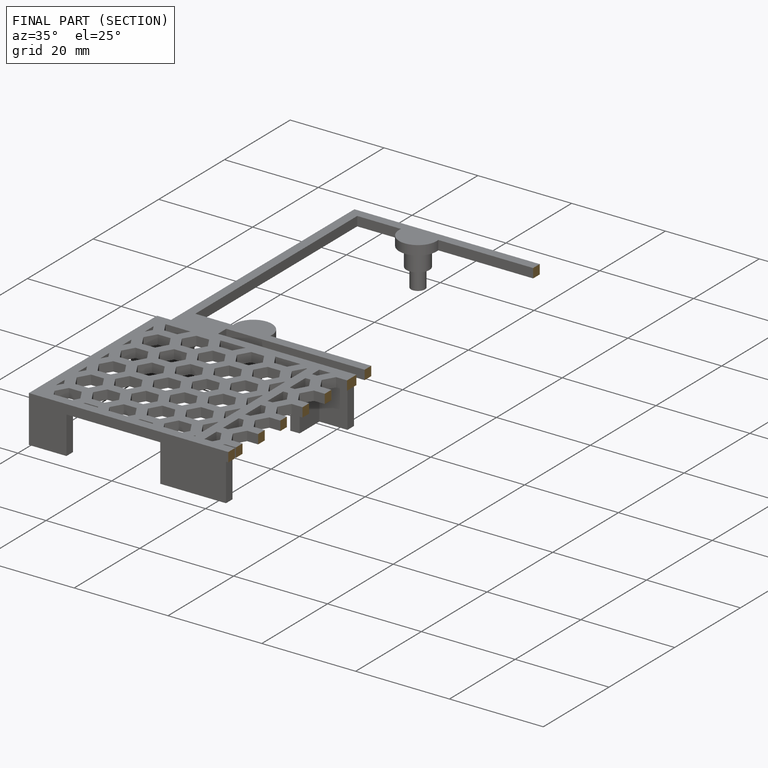
[diagram: finished part — half-section view (interior)]
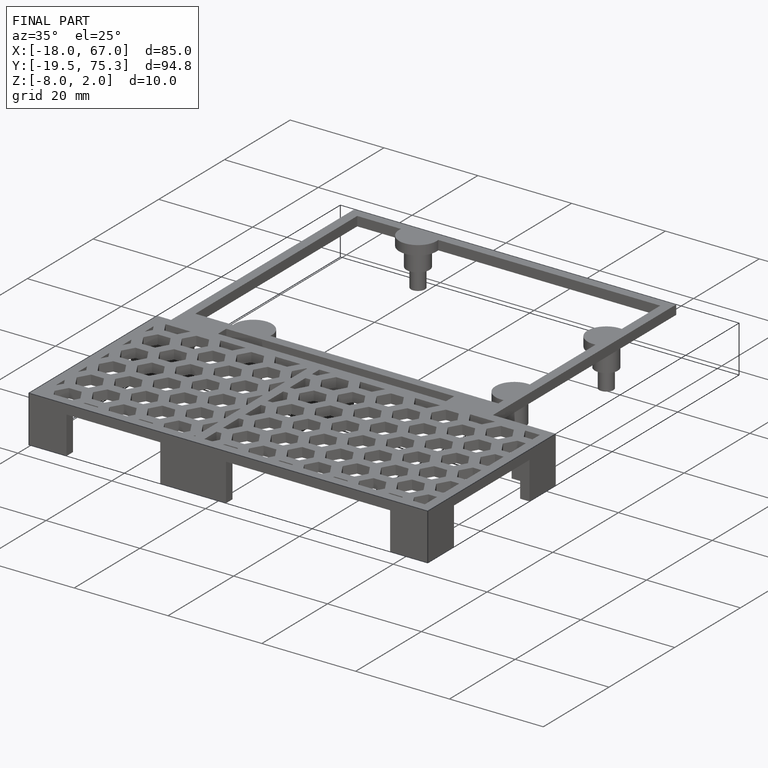
[diagram: finished part — iso view with bounding-box wireframe]
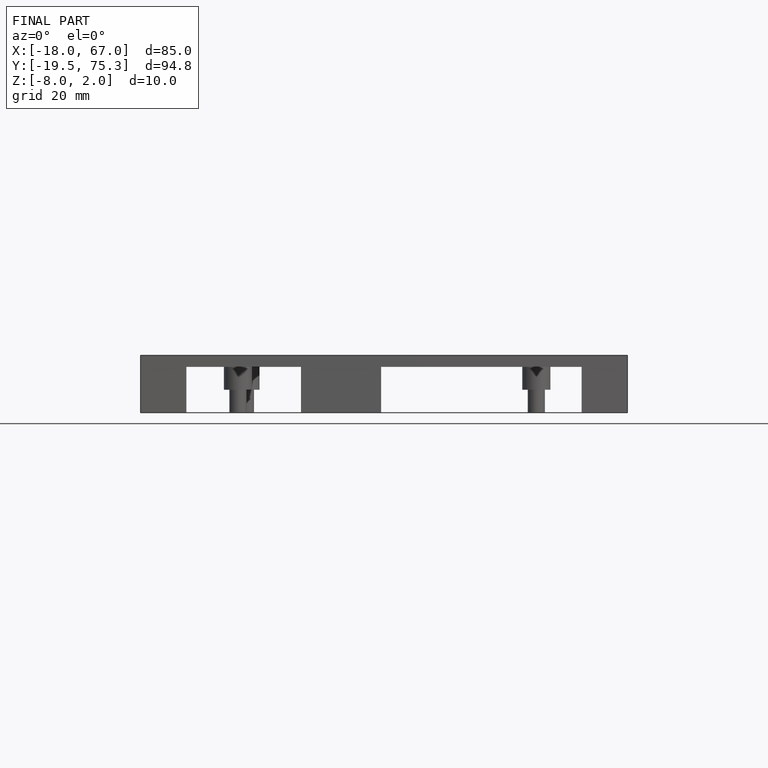
[diagram: finished part — front view with bounding-box wireframe]
